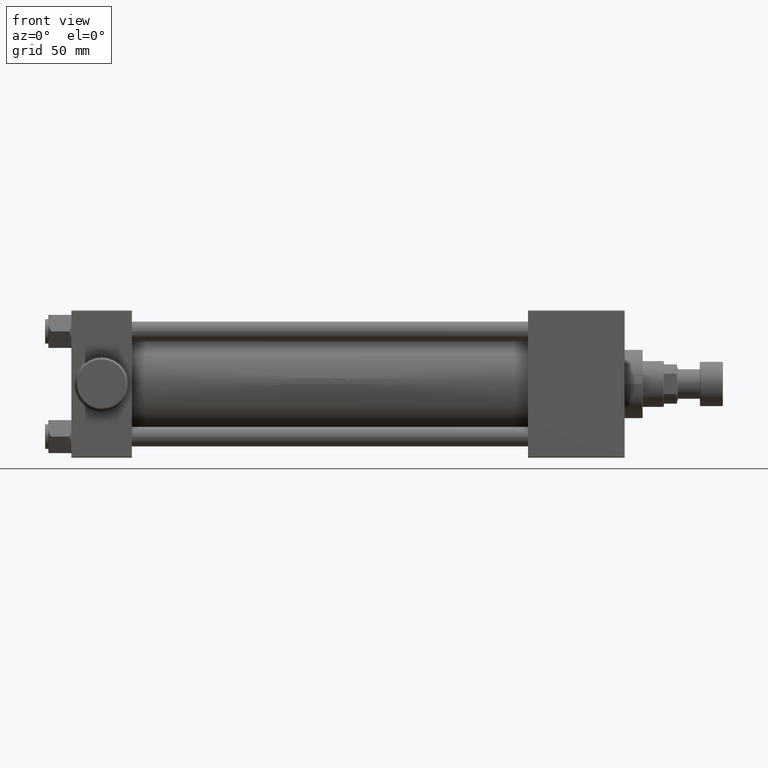
[diagram: clean part render]
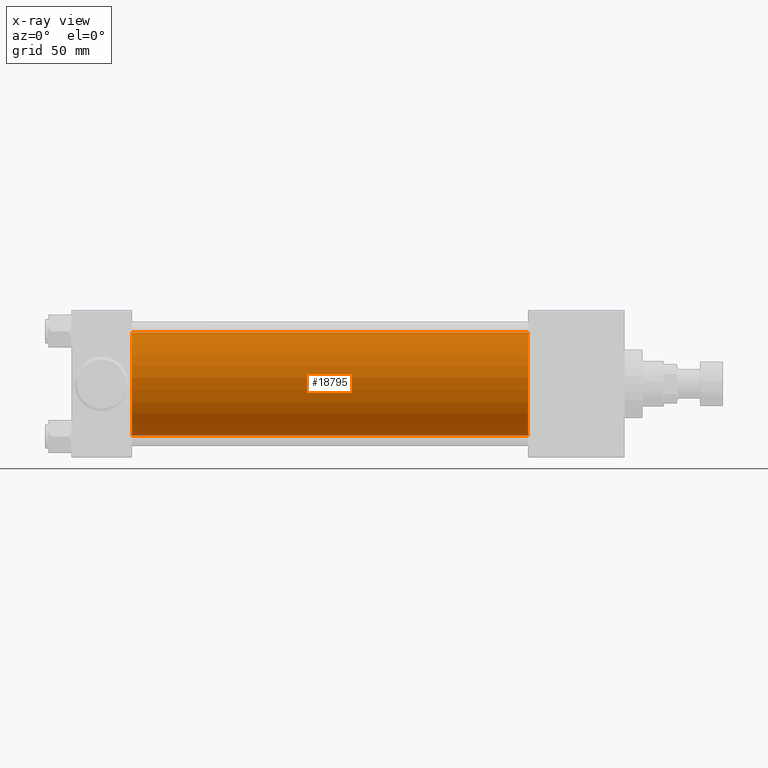
[diagram: x-ray — body ghosted, one internal face saturated and labeled with its STEP entity id]
A machine part, front view, then the same camera in x-ray: the body is ghosted and one INTERNAL B-rep face — a face not visible from any outside direction — is saturated and labeled: STEP entity #18795.
In plain terms, the highlighted cylindrical surface (partial cylindrical patch) has radius 31.5 mm, axis along (-1, -0, -0).
Its self-contained STEP definition (entity closure, byte-faithful):
#1521 = CARTESIAN_POINT ( 'NONE',  ( 278.9999999999999432, 3.881904653605483521E-16, -31.50000000000000000 ) ) ;
#2136 = DIRECTION ( 'NONE',  ( 1.000000000000000000, 0.000000000000000000, 0.000000000000000000 ) ) ;
#2493 = VECTOR ( 'NONE', #21012, 1000.000000000000000 ) ;
#4230 = CIRCLE ( 'NONE', #14790, 31.50000000000000000 ) ;
#6128 = ORIENTED_EDGE ( 'NONE', *, *, #7372, .T. ) ;
#6352 = ORIENTED_EDGE ( 'NONE', *, *, #15052, .F. ) ;
#7232 = AXIS2_PLACEMENT_3D ( 'NONE', #33842, #2136, #44461 ) ;
#7372 = EDGE_CURVE ( 'NONE', #19174, #43718, #37889, .T. ) ;
#8352 = VERTEX_POINT ( 'NONE', #23009 ) ;
#9582 = DIRECTION ( 'NONE',  ( 0.000000000000000000, 0.000000000000000000, -1.000000000000000000 ) ) ;
#9811 = DIRECTION ( 'NONE',  ( 1.000000000000000000, 0.000000000000000000, 0.000000000000000000 ) ) ;
#13137 = ORIENTED_EDGE ( 'NONE', *, *, #40003, .T. ) ;
#14790 = AXIS2_PLACEMENT_3D ( 'NONE', #20000, #9811, #9582 ) ;
#15052 = EDGE_CURVE ( 'NONE', #16124, #8352, #35451, .T. ) ;
#16124 = VERTEX_POINT ( 'NONE', #40411 ) ;
#17903 = DIRECTION ( 'NONE',  ( -1.000000000000000000, -0.000000000000000000, -0.000000000000000000 ) ) ;
#18795 = ADVANCED_FACE ( 'NONE', ( #39203 ), #42974, .F. ) ;
#19174 = VERTEX_POINT ( 'NONE', #1521 ) ;
#19632 = VECTOR ( 'NONE', #30789, 1000.000000000000000 ) ;
#19901 = CARTESIAN_POINT ( 'NONE',  ( 278.9999999999999432, 3.881904653605483521E-16, -31.50000000000000000 ) ) ;
#20000 = CARTESIAN_POINT ( 'NONE',  ( 37.00000000000000000, -3.469446951953614189E-15, 0.000000000000000000 ) ) ;
#21012 = DIRECTION ( 'NONE',  ( -1.000000000000000000, -0.000000000000000000, -0.000000000000000000 ) ) ;
#22670 = CARTESIAN_POINT ( 'NONE',  ( 37.00000000000000000, 3.881904653605483521E-16, -31.50000000000000000 ) ) ;
#23009 = CARTESIAN_POINT ( 'NONE',  ( 37.00000000000000000, -3.469446951953614189E-15, 31.50000000000000000 ) ) ;
#28082 = DIRECTION ( 'NONE',  ( 0.000000000000000000, 0.000000000000000000, 1.000000000000000000 ) ) ;
#28568 = CARTESIAN_POINT ( 'NONE',  ( 278.9999999999999432, -3.469446951953614189E-15, 31.50000000000000000 ) ) ;
#30789 = DIRECTION ( 'NONE',  ( -1.000000000000000000, -0.000000000000000000, -0.000000000000000000 ) ) ;
#31012 = EDGE_LOOP ( 'NONE', ( #13137, #6128, #40831, #6352 ) ) ;
#33842 = CARTESIAN_POINT ( 'NONE',  ( 278.9999999999999432, -3.469446951953614189E-15, 0.000000000000000000 ) ) ;
#35451 = LINE ( 'NONE', #28568, #2493 ) ;
#36709 = EDGE_CURVE ( 'NONE', #8352, #43718, #4230, .T. ) ;
#37889 = LINE ( 'NONE', #19901, #19632 ) ;
#39203 = FACE_OUTER_BOUND ( 'NONE', #31012, .T. ) ;
#39708 = CIRCLE ( 'NONE', #7232, 31.50000000000000000 ) ;
#40003 = EDGE_CURVE ( 'NONE', #16124, #19174, #39708, .T. ) ;
#40411 = CARTESIAN_POINT ( 'NONE',  ( 278.9999999999999432, -3.469446951953614189E-15, 31.50000000000000000 ) ) ;
#40831 = ORIENTED_EDGE ( 'NONE', *, *, #36709, .F. ) ;
#42974 = CYLINDRICAL_SURFACE ( 'NONE', #45640, 31.50000000000000000 ) ;
#43718 = VERTEX_POINT ( 'NONE', #22670 ) ;
#44461 = DIRECTION ( 'NONE',  ( 0.000000000000000000, 0.000000000000000000, -1.000000000000000000 ) ) ;
#45640 = AXIS2_PLACEMENT_3D ( 'NONE', #46278, #17903, #28082 ) ;
#46278 = CARTESIAN_POINT ( 'NONE',  ( 278.9999999999999432, -3.469446951953614189E-15, 0.000000000000000000 ) ) ;